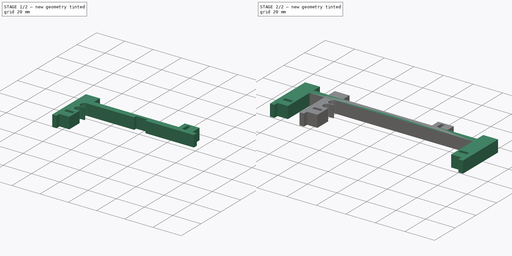
[diagram: build sequence overview — one tinted view per stage of 2, left to right]
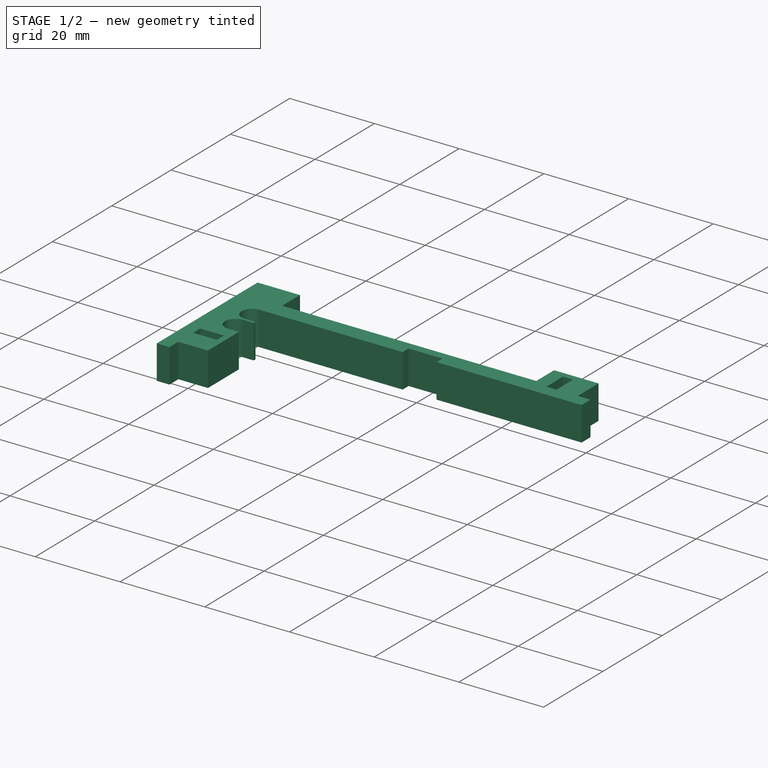
[diagram: stage 1 of 2 — iso view after this stage's code; geometry added in this stage tinted green]
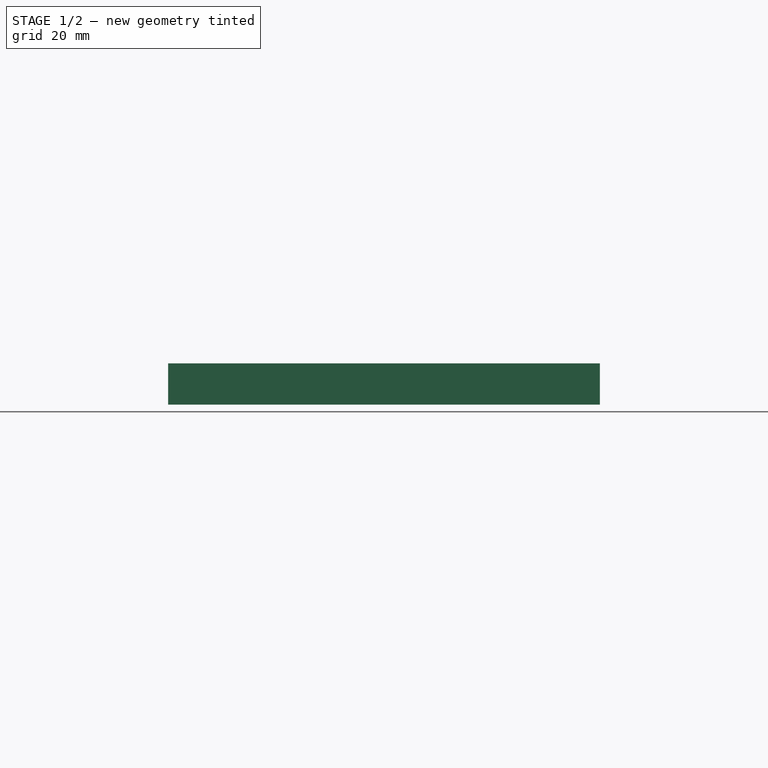
[diagram: stage 1 of 2 — front view after this stage's code; geometry added in this stage tinted green]
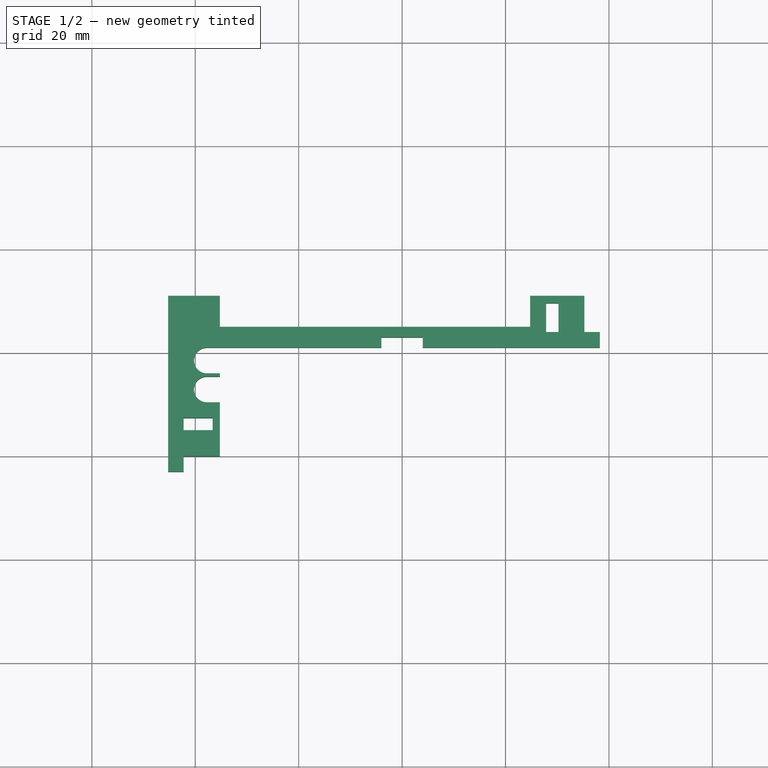
[diagram: stage 1 of 2 — top view after this stage's code; geometry added in this stage tinted green]
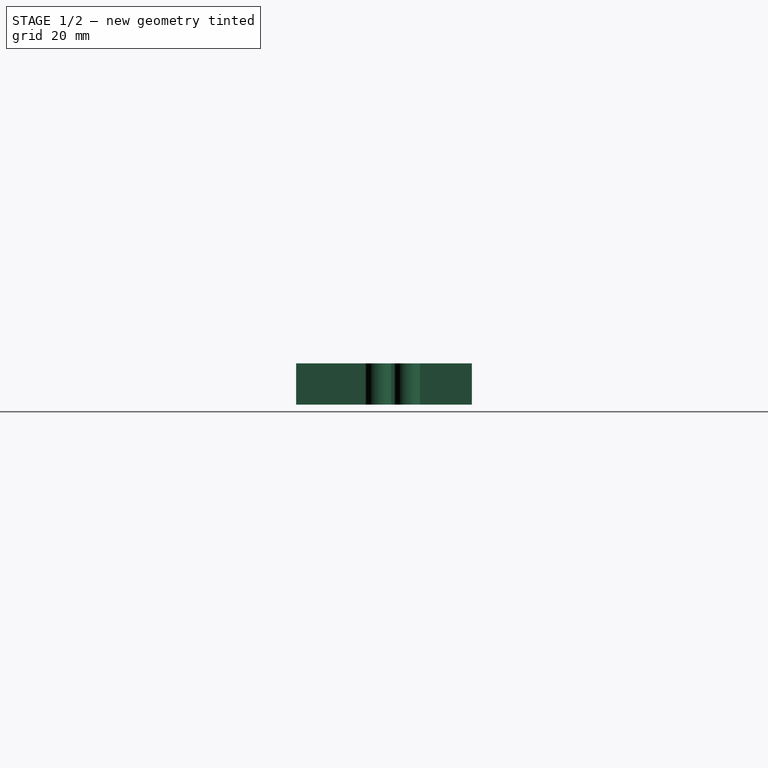
[diagram: stage 1 of 2 — right view after this stage's code; geometry added in this stage tinted green]
FCSTD DOCUMENT  (FreeCAD 0.19R24291 (Git))
Label: ri-batteryholder
License: All rights reserved
LicenseURL: http://en.wikipedia.org/wiki/All_rights_reserved
objects: Sketcher::SketchObject×2, PartDesign::Pad×2, PartDesign::Body×2
note: 8 computed .brp shape members not serialized (recipe doc carries the construction recipe); baked Part::Feature solids carry a one-line shape summary decoded from their .brp

FEATURE [PartDesign::Body] Body  label="longbatteryholder"
  Group = -> [Sketch,Pad]
  Origin = -> Origin
  Tip = -> Pad
FEATURE [Sketcher::SketchObject] Sketch001
  FullyConstrained = true
  MapMode = 5
  Support = -> [XY_Plane001]
  expr: Constraints[51] = Sketch.Constraints.nutwidth
  expr: Constraints[46] = Sketch.Constraints.thickness
  expr: Constraints[55] = Sketch.Constraints.nutdistance
  expr: Constraints[56] = Sketch.Constraints.height
  expr: Constraints[52] = Sketch.Constraints.nutheight
  expr: Constraints[58] = Sketch.Constraints.micbase
  expr: Constraints[53] = Sketch.Constraints.nutdistance
  expr: Constraints[93] = Sketch.Constraints.micheight
  sketch-geometry (35):
    g0: LineSegment StartX=24.75 StartY=25 StartZ=0 EndX=24.75 EndY=31 EndZ=0
    g1: LineSegment StartX=24.75 StartY=31 StartZ=0 EndX=35.25 EndY=31 EndZ=0
    g2: LineSegment StartX=35.25 StartY=31 StartZ=0 EndX=35.25 EndY=24 EndZ=0
    g3: LineSegment StartX=-35.25 StartY=21 StartZ=0 EndX=-37.75 EndY=21 EndZ=0
    g4: LineSegment StartX=-37.75 StartY=16 StartZ=0 EndX=-35.25 EndY=16 EndZ=0
    g5: LineSegment StartX=-35.25 StartY=16 StartZ=0 EndX=-35.25 EndY=15.4 EndZ=0
    g6: LineSegment StartX=-35.25 StartY=15.4 StartZ=0 EndX=-37.75 EndY=15.4 EndZ=0
    g7: LineSegment StartX=-37.75 StartY=10.4 StartZ=0 EndX=-35.25 EndY=10.4 EndZ=0
    g8: LineSegment StartX=-35.25 StartY=10.4 StartZ=0 EndX=-35.25 EndY=0 EndZ=0
    g9: LineSegment StartX=-35.25 StartY=0 StartZ=0 EndX=-42.25 EndY=0 EndZ=0
    g10: LineSegment StartX=-42.25 StartY=0 StartZ=0 EndX=-42.25 EndY=-3 EndZ=0
    g11: LineSegment StartX=-42.25 StartY=-3 StartZ=0 EndX=-45.25 EndY=-3 EndZ=0
    g12: LineSegment StartX=-45.25 StartY=-3 StartZ=0 EndX=-45.25 EndY=31 EndZ=0
    g13: LineSegment StartX=-45.25 StartY=31 StartZ=0 EndX=-35.25 EndY=31 EndZ=0
    g14: LineSegment StartX=-35.25 StartY=21 StartZ=0 EndX=-4 EndY=21 EndZ=0
    g15: LineSegment StartX=-4 StartY=21 StartZ=0 EndX=-4 EndY=23 EndZ=0
    g16: LineSegment StartX=-4 StartY=23 StartZ=0 EndX=4 EndY=23 EndZ=0
    g17: LineSegment StartX=4 StartY=23 StartZ=0 EndX=4 EndY=21 EndZ=0
    g18: LineSegment StartX=4 StartY=21 StartZ=0 EndX=35.25 EndY=21 EndZ=0
    g19: LineSegment StartX=27.85 StartY=29.6 StartZ=0 EndX=30.25 EndY=29.6 EndZ=0
    g20: LineSegment StartX=30.25 StartY=29.6 StartZ=0 EndX=30.25 EndY=24 EndZ=0
    g21: LineSegment StartX=30.25 StartY=24 StartZ=0 EndX=27.85 EndY=24 EndZ=0
    g22: LineSegment StartX=27.85 StartY=24 StartZ=0 EndX=27.85 EndY=29.6 EndZ=0
    g23: LineSegment StartX=-42.25 StartY=7.4 StartZ=0 EndX=-36.65 EndY=7.4 EndZ=0
    g24: LineSegment StartX=-36.65 StartY=7.4 StartZ=0 EndX=-36.65 EndY=5 EndZ=0
    g25: LineSegment StartX=-36.65 StartY=5 StartZ=0 EndX=-42.25 EndY=5 EndZ=0
    g26: LineSegment StartX=-42.25 StartY=5 StartZ=0 EndX=-42.25 EndY=7.4 EndZ=0
    g27: GeomPoint X=30.25 Y=26.8 Z=0
    g28: LineSegment StartX=-35.25 StartY=25 StartZ=0 EndX=24.75 EndY=25 EndZ=0
    g29: ArcOfCircle CenterX=-37.75 CenterY=18.5 CenterZ=0 NormalX=0 NormalY=0 NormalZ=1 AngleXU=0 Radius=2.5 StartAngle=1.5708 EndAngle=4.71239
    g30: ArcOfCircle CenterX=-37.75 CenterY=12.9 CenterZ=0 NormalX=0 NormalY=0 NormalZ=1 AngleXU=0 Radius=2.5 StartAngle=1.5708 EndAngle=4.71239
    g31: LineSegment StartX=35.25 StartY=24 StartZ=0 EndX=38.25 EndY=24 EndZ=0
    g32: LineSegment StartX=38.25 StartY=24 StartZ=0 EndX=38.25 EndY=21 EndZ=0
    g33: LineSegment StartX=38.25 StartY=21 StartZ=0 EndX=35.25 EndY=21 EndZ=0
    g34: LineSegment StartX=-35.25 StartY=31 StartZ=0 EndX=-35.25 EndY=25 EndZ=0
  constraints (100):
    c: Vertical(g0)
    c: Coincident(g0,g1)
    c: Horizontal(g1)
    c: Vertical(g2)
    c: Horizontal(g3)
    c: Horizontal(g4)
    c: Coincident(g4,g5)
    c: Vertical(g5)
    c: Coincident(g5,g6)
    c: Horizontal(g6)
    c: Horizontal(g7)
    c: Vertical(g8)
    c: Coincident(g8,g9)
    c: Horizontal(g9)
    c: Coincident(g9,g10)
    c: Vertical(g10)
    c: Coincident(g10,g11)
    c: Horizontal(g11)
    c: Coincident(g11,g12)
    c: Vertical(g12)
    c: Horizontal(g13)
    c: Horizontal(g14)
    c: Coincident(g14,g15)
    c: Vertical(g15)
    c: Coincident(g15,g16)
    c: Horizontal(g16)
    c: Coincident(g16,g17)
    c: Vertical(g17)
    c: Coincident(g17,g18)
    c: Horizontal(g18)
    c: Coincident(g19,g20)
    c: Coincident(g22,g19)
    c: Horizontal(g19)
    c: Horizontal(g21)
    c: Vertical(g20)
    c: Vertical(g22)
    c: Coincident(g23,g24)
    c: Coincident(g24,g25)
    c: Coincident(g25,g26)
    c: Coincident(g26,g23)
    c: Horizontal(g23)
    c: Horizontal(g25)
    c: Vertical(g24)
    c: Vertical(g26)
    c: Coincident(g8,g7)
    c: DistanceX(g14,g18) = 70.5  'batterywidth'
    c: DistanceX(g16,g16) = 8
    c: Equal(g14,g18)
    c: Symmetric(g18,g14,g-2)
    c: Equal(g10,g11)
    c: Vertical(g25,g9)
    c: DistanceX(g23,g23) = 5.6
    c: DistanceY(g26,g26) = 2.4
    c: DistanceY(g9,g25) = 5
    c: Symmetric(g19,g20,g27)
    c: DistanceX(g20,g2) = 5
    c: DistanceY(g9,g12) = 31
    c: Horizontal(g28)
    c: DistanceX(g28,g28) = 60
    c: Vertical(g7,g5)
    c: Equal(g7,g4)
    c: DistanceX(g3,g3) = 2.5
    c: Tangent(g29,g4) = -1.5708
    c: Tangent(g29,g3) = -1.5708
    c: Diameter(g29) = 5
    c: Coincident(g3,g14)
    c: Equal(g29,g30)
    c: Tangent(g30,g6) = -1.5708
    c: Tangent(g30,g7) = -1.5708
    c: DistanceY(g23,g7) = 3
    c: DistanceY(g15,g15) = 2
    c: DistanceY(g8,g3) = 21
    c: Coincident(g13,g12)
    c: DistanceX(g11,g11) = 3
    c: DistanceX(g13,g13) = 10
    c: Equal(g22,g23)
    c: Equal(g26,g21)
    c: Coincident(g0,g28)
    c: Coincident(g1,g2)
    c: Coincident(g21,g22)
    c: Vertical(g5,g3)
    c: Coincident(g20,g21)
    c: Coincident(g2,g31)
    c: Horizontal(g31)
    c: Coincident(g31,g32)
    c: Vertical(g32)
    c: Coincident(g32,g33)
    c: Coincident(g33,g18)
    c: Horizontal(g33)
    c: Vertical(g2,g18)
    c: Horizontal(g2,g20)
    c: Coincident(g34,g28)
    c: Vertical(g34)
    c: DistanceY(g34,g34) = 6
    c: Equal(g34,g0)
    c: Equal(g31,g32)
    c: Equal(g32,g11)
    c: PointOnObject(g8,g-1)
    c: DistanceX(g9,g9) = 7
    c: Coincident(g34,g13)
FEATURE [PartDesign::Pad] Pad001
  Direction = (1,1,1)
  Length = 8
  Length2 = 100
  Midplane = true
  Profile = -> Sketch001
  Refine = true
  Type = 0
FEATURE [PartDesign::Body] Body001  label="shortbatteryholder"
  Group = -> [Sketch001,Pad001]
  Origin = -> Origin001
  Tip = -> Pad001
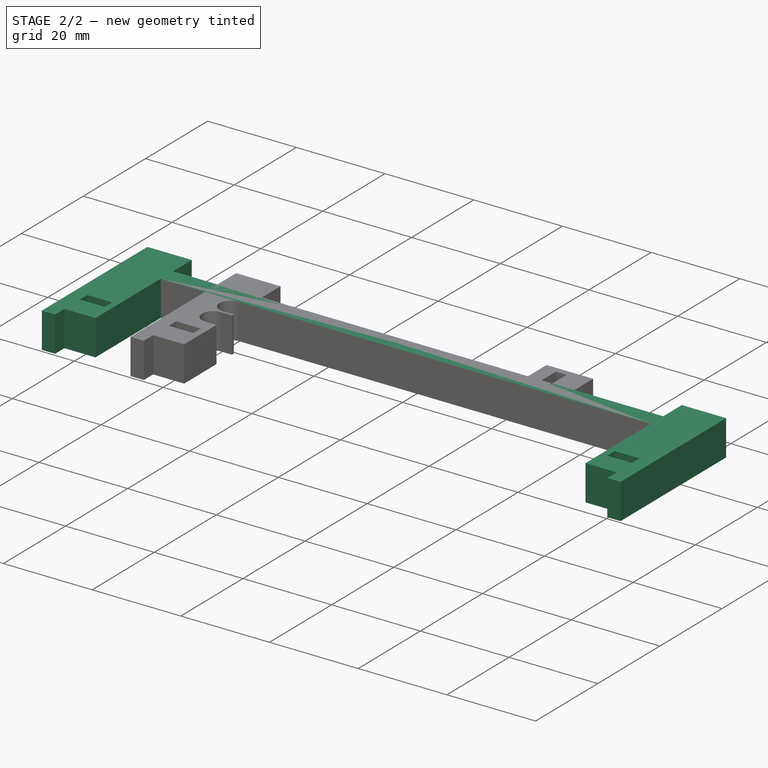
[diagram: stage 2 of 2 — iso view after this stage's code; geometry added in this stage tinted green]
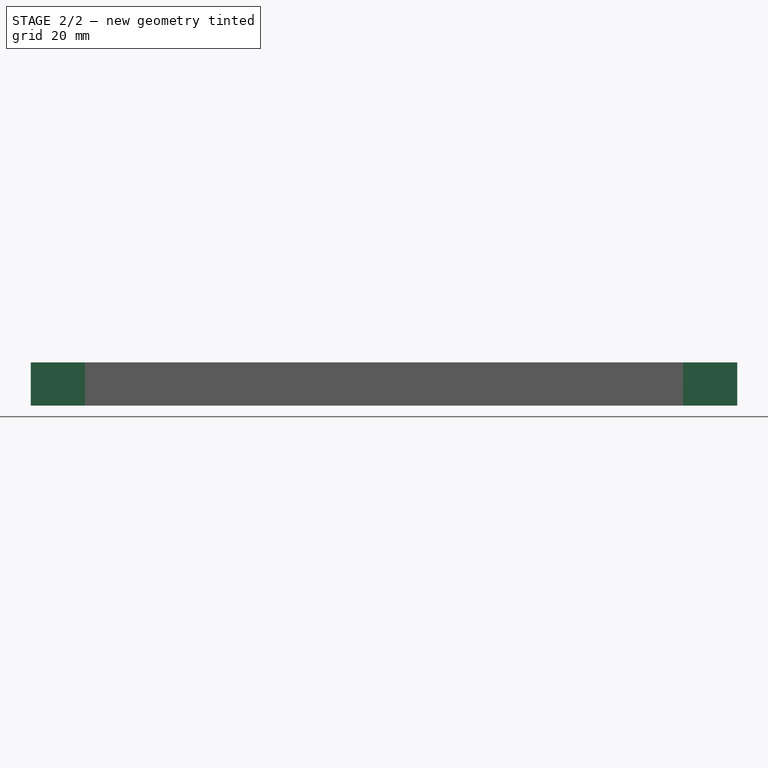
[diagram: stage 2 of 2 — front view after this stage's code; geometry added in this stage tinted green]
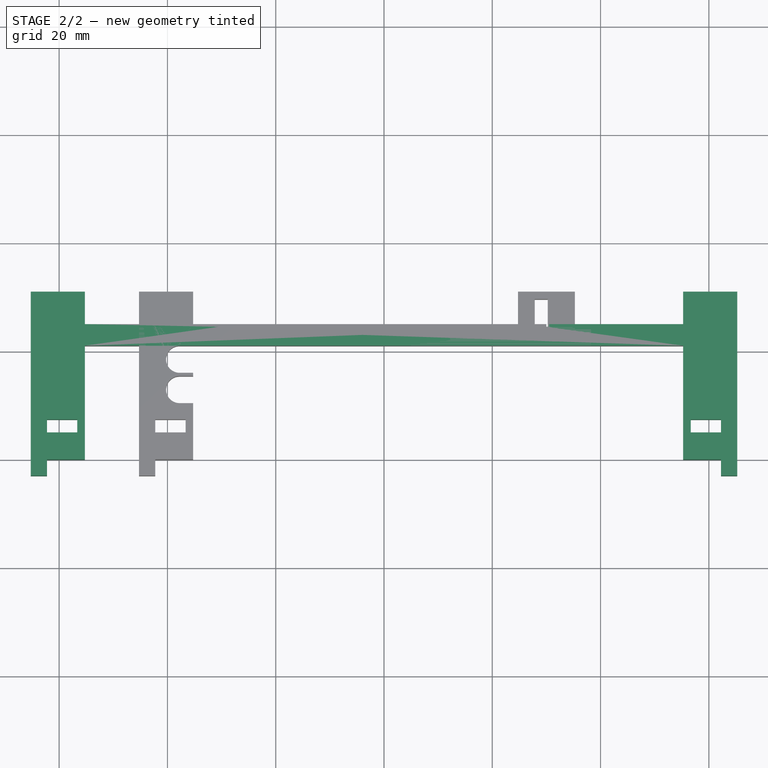
[diagram: stage 2 of 2 — top view after this stage's code; geometry added in this stage tinted green]
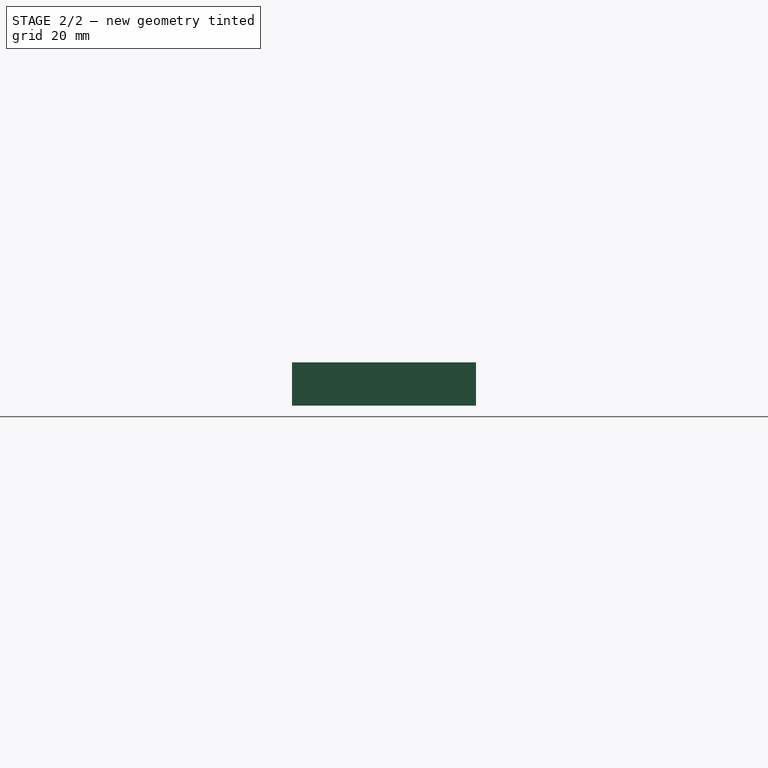
[diagram: stage 2 of 2 — right view after this stage's code; geometry added in this stage tinted green]
FEATURE [Sketcher::SketchObject] Sketch
  FullyConstrained = true
  MapMode = 5
  Support = -> [XY_Plane]
  expr: Constraints[87] = .Constraints.nutwidth / 2
  expr: Constraints[90] = .Constraints.nutwidth / 2
  sketch-geometry (40):
    g0: LineSegment StartX=-55.25 StartY=0 StartZ=0 EndX=-62.25 EndY=0 EndZ=0
    g1: LineSegment StartX=-62.25 StartY=0 StartZ=0 EndX=-62.25 EndY=-3 EndZ=0
    g2: LineSegment StartX=-62.25 StartY=-3 StartZ=0 EndX=-65.25 EndY=-3 EndZ=0
    g3: LineSegment StartX=-65.25 StartY=-3 StartZ=0 EndX=-65.25 EndY=31 EndZ=0
    g4: LineSegment StartX=-55.25 StartY=31 StartZ=0 EndX=-55.25 EndY=25 EndZ=0
    g5: LineSegment StartX=-4 StartY=25 StartZ=0 EndX=-4 EndY=23 EndZ=0
    g6: LineSegment StartX=-4 StartY=23 StartZ=0 EndX=4 EndY=23 EndZ=0
    g7: LineSegment StartX=4 StartY=23 StartZ=0 EndX=4 EndY=25 EndZ=0
    g8: LineSegment StartX=55.25 StartY=25 StartZ=0 EndX=55.25 EndY=31 EndZ=0
    g9: LineSegment StartX=55.25 StartY=31 StartZ=0 EndX=65.25 EndY=31 EndZ=0
    g10: LineSegment StartX=65.25 StartY=31 StartZ=0 EndX=65.25 EndY=-3 EndZ=0
    g11: LineSegment StartX=65.25 StartY=-3 StartZ=0 EndX=62.25 EndY=-3 EndZ=0
    g12: LineSegment StartX=62.25 StartY=-3 StartZ=0 EndX=62.25 EndY=0 EndZ=0
    g13: LineSegment StartX=62.25 StartY=0 StartZ=0 EndX=55.25 EndY=0 EndZ=0
    g14: LineSegment StartX=55.25 StartY=0 StartZ=0 EndX=55.25 EndY=21 EndZ=0
    g15: LineSegment StartX=55.25 StartY=21 StartZ=0 EndX=-55.25 EndY=21 EndZ=0
    g16: LineSegment StartX=-55.25 StartY=21 StartZ=0 EndX=-55.25 EndY=0 EndZ=0
    g17: LineSegment StartX=-30.5 StartY=25 StartZ=0 EndX=-30.5 EndY=24.5 EndZ=0
    g18: LineSegment StartX=30 StartY=25 StartZ=0 EndX=30 EndY=24.5 EndZ=0
    g19: LineSegment StartX=-30.5 StartY=24.5 StartZ=0 EndX=-30 EndY=24.5 EndZ=0
    g20: LineSegment StartX=-30 StartY=24.5 StartZ=0 EndX=-30 EndY=25 EndZ=0
    g21: LineSegment StartX=4 StartY=25 StartZ=0 EndX=30 EndY=25 EndZ=0
    g22: LineSegment StartX=30 StartY=24.5 StartZ=0 EndX=30.5 EndY=24.5 EndZ=0
    g23: LineSegment StartX=30.5 StartY=24.5 StartZ=0 EndX=30.5 EndY=25 EndZ=0
    g24: LineSegment StartX=30.5 StartY=25 StartZ=0 EndX=55.25 EndY=25 EndZ=0
    g25: GeomPoint X=59.45 Y=1e-16 Z=0
    g26: GeomPoint X=-59.45 Y=-1e-16 Z=0
    g27: LineSegment StartX=56.65 StartY=5 StartZ=0 EndX=62.25 EndY=5 EndZ=0
    g28: LineSegment StartX=62.25 StartY=5 StartZ=0 EndX=62.25 EndY=7.4 EndZ=0
    g29: LineSegment StartX=62.25 StartY=7.4 StartZ=0 EndX=56.65 EndY=7.4 EndZ=0
    g30: LineSegment StartX=56.65 StartY=7.4 StartZ=0 EndX=56.65 EndY=5 EndZ=0
    g31: LineSegment StartX=-62.25 StartY=5 StartZ=0 EndX=-56.65 EndY=5 EndZ=0
    g32: LineSegment StartX=-56.65 StartY=5 StartZ=0 EndX=-56.65 EndY=7.4 EndZ=0
    g33: LineSegment StartX=-56.65 StartY=7.4 StartZ=0 EndX=-62.25 EndY=7.4 EndZ=0
    g34: LineSegment StartX=-62.25 StartY=7.4 StartZ=0 EndX=-62.25 EndY=5 EndZ=0
    g35: GeomPoint X=-59.45 Y=7.4 Z=0
    g36: GeomPoint X=59.45 Y=7.4 Z=0
    g37: LineSegment StartX=-55.25 StartY=25 StartZ=0 EndX=-30.5 EndY=25 EndZ=0
    g38: LineSegment StartX=-30 StartY=25 StartZ=0 EndX=-4 EndY=25 EndZ=0
    g39: LineSegment StartX=-65.25 StartY=31 StartZ=0 EndX=-55.25 EndY=31 EndZ=0
  constraints (111):
    c: Horizontal(g0)
    c: Coincident(g0,g1)
    c: Vertical(g1)
    c: Coincident(g1,g2)
    c: Horizontal(g2)
    c: Coincident(g2,g3)
    c: Vertical(g3)
    c: Vertical(g4)
    c: Vertical(g5)
    c: Coincident(g5,g6)
    c: Coincident(g6,g7)
    c: Vertical(g7)
    c: Vertical(g8)
    c: Coincident(g8,g9)
    c: Horizontal(g9)
    c: Vertical(g10)
    c: Coincident(g10,g11)
    c: Horizontal(g11)
    c: Coincident(g11,g12)
    c: Coincident(g12,g13)
    c: Horizontal(g13)
    c: Coincident(g13,g14)
    c: Vertical(g14)
    c: Coincident(g14,g15)
    c: Horizontal(g15)
    c: Coincident(g15,g16)
    c: Coincident(g16,g0)
    c: Vertical(g16)
    c: Equal(g5,g7)
    c: DistanceX(g6,g6) = 8  'thickness'
    c: Equal(g2,g1)
    c: Equal(g12,g11)
    c: Vertical(g12)
    c: DistanceX(g15,g14) = 110.5  'length'
    c: Equal(g4,g8)
    c: DistanceY(g4,g4) = 6  'micheight'
    c: DistanceY(g0,g3) = 31  'height'
    c: DistanceY(g16,g16) = 21  'batteryheight'
    c: DistanceY(g5,g5) = 2
    c: Equal(g14,g16)
    c: Symmetric(g0,g13,g-1)
    c: Vertical(g17)
    c: Vertical(g18)
    c: DistanceY(g17,g17) = 0.5  'mark'
    c: Equal(g18,g17)
    c: Coincident(g17,g19)
    c: Horizontal(g19)
    c: Coincident(g19,g20)
    c: Vertical(g20)
    c: Coincident(g21,g7)
    c: Coincident(g21,g18)
    c: Horizontal(g21)
    c: Coincident(g18,g22)
    c: Horizontal(g22)
    c: Coincident(g22,g23)
    c: Vertical(g23)
    c: Coincident(g23,g24)
    c: Coincident(g24,g8)
    c: Horizontal(g24)
    c: Equal(g23,g18)
    c: Equal(g3,g10)
    c: Coincident(g27,g28)
    c: Coincident(g28,g29)
    c: Coincident(g29,g30)
    c: Coincident(g30,g27)
    c: Horizontal(g27)
    c: Horizontal(g29)
    c: Vertical(g28)
    c: Vertical(g30)
    c: Coincident(g31,g32)
    c: Coincident(g32,g33)
    c: Coincident(g33,g34)
    c: Coincident(g34,g31)
    c: Horizontal(g31)
    c: Horizontal(g33)
    c: Vertical(g32)
    c: Vertical(g34)
    c: Equal(g31,g27)
    c: Equal(g30,g34)
    c: Symmetric(g28,g29,g36)
    c: Symmetric(g33,g32,g35)
    c: Vertical(g35,g26)
    c: DistanceY(g34,g34) = 2.4  'nutheight'
    c: DistanceY(g26,g31) = 5  'nutdistance'
    c: DistanceX(g31,g31) = 5.6  'nutwidth'
    c: Vertical(g36,g25)
    c: Horizontal(g36,g35)
    c: DistanceX(g0,g26) = 2.8
    c: PointOnObject(g26,g0)
    c: PointOnObject(g25,g13)
    c: DistanceX(g25,g12) = 2.8
    c: Symmetric(g6,g5,g-2)
    c: Coincident(g37,g4)
    c: Coincident(g37,g17)
    c: Horizontal(g37)
    c: Coincident(g38,g20)
    c: Coincident(g38,g5)
    c: DistanceX(g20,g18) = 60  'micbase'
    c: Symmetric(g20,g18,g-2)
    c: Coincident(g39,g3)
    c: Coincident(g39,g4)
    c: Horizontal(g39)
    c: DistanceX(g2,g2) = 3  'baseplate'
    c: Coincident(g9,g10)
    c: Equal(g1,g12)
    c: DistanceX(g0,g0) = 7
    c: Equal(g0,g13)
    c: Equal(g39,g9)
    c: Vertical(g4,g15)
    c: Equal(g19,g17)
    c: Equal(g22,g18)
FEATURE [PartDesign::Pad] Pad
  Direction = (1,1,1)
  Length = 8
  Length2 = 100
  Midplane = true
  Profile = -> Sketch
  Refine = true
  Type = 0
  expr: Length = Sketch.Constraints.thickness
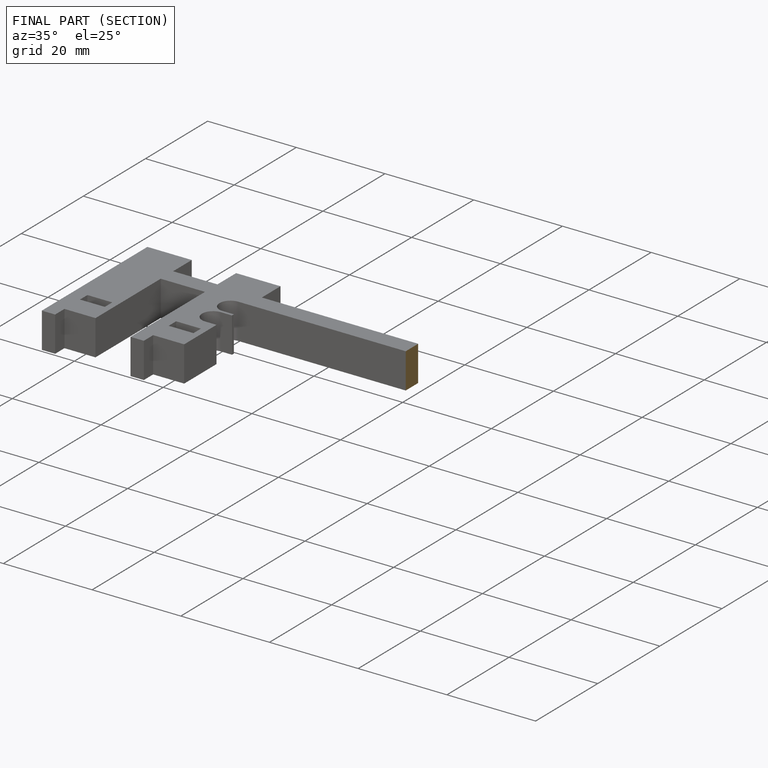
[diagram: finished part — half-section view (interior)]
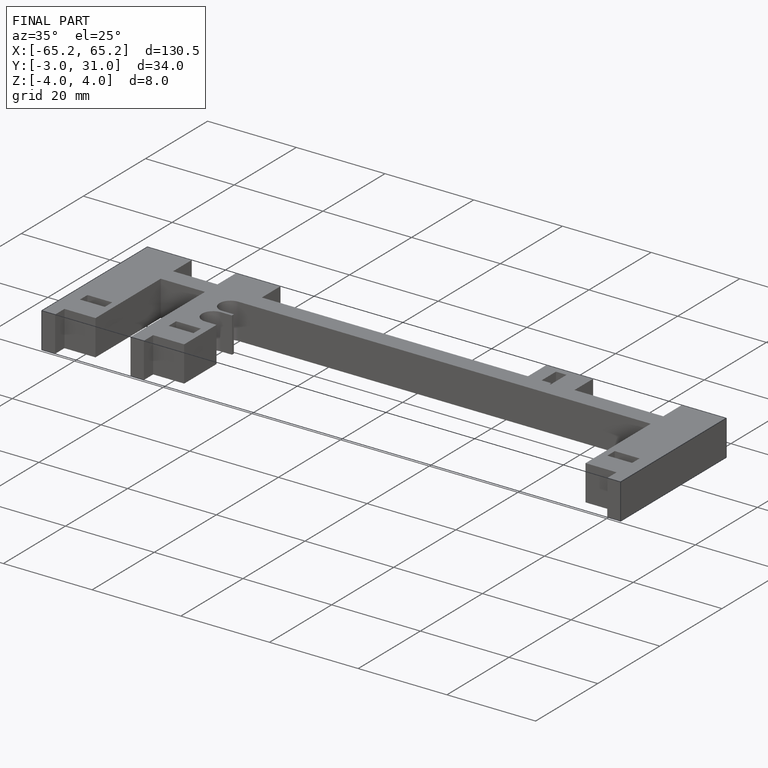
[diagram: finished part — iso view with bounding-box wireframe]
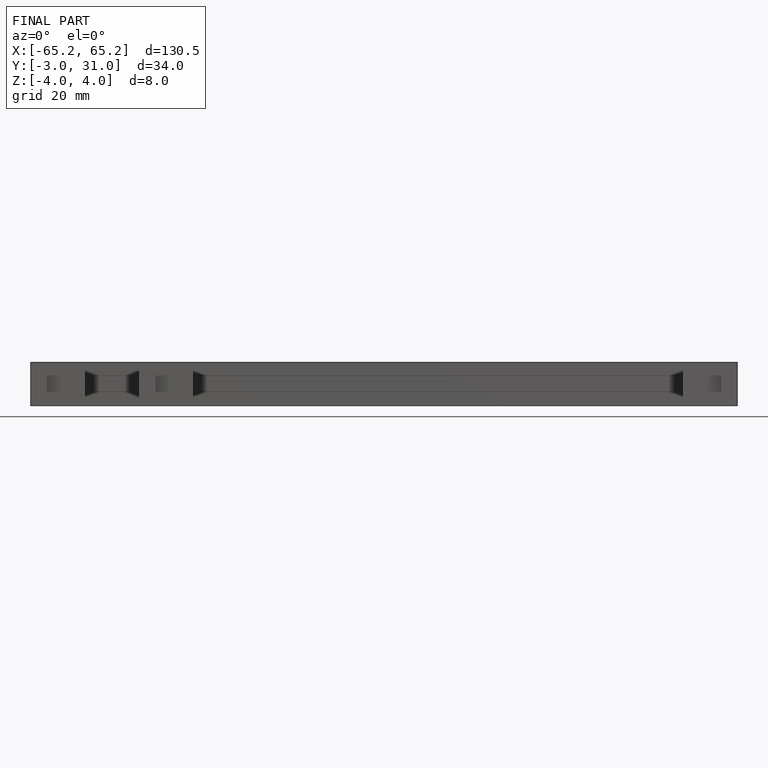
[diagram: finished part — front view with bounding-box wireframe]
